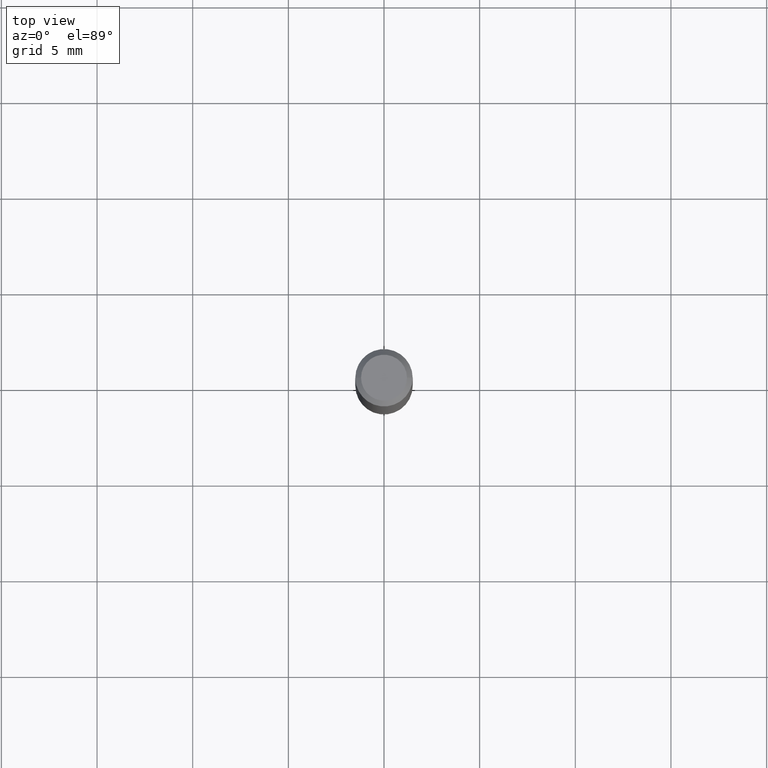
[diagram: clean part render]
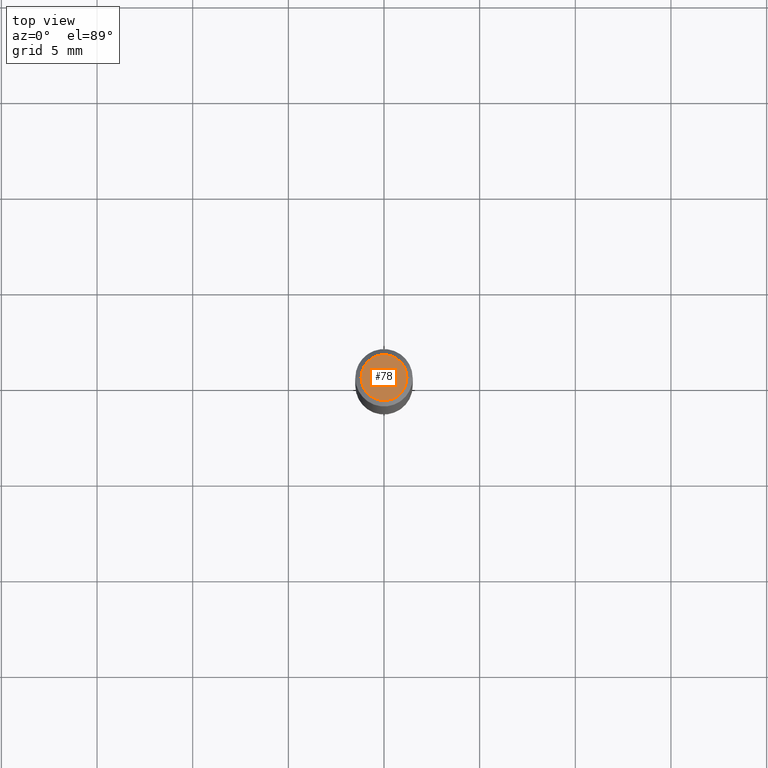
[diagram: same view with one face highlighted and labeled with its STEP entity id]
A machine part, top view. The second image highlights one B-rep face of the part: STEP entity #78.
In plain terms, the highlighted planar face has unit normal (0, -0, -1).
Its self-contained STEP definition (entity closure, byte-faithful):
#15 = DIRECTION ( 'NONE',  ( 1.000000000000000000, -6.982962677686266711E-15, 4.876185090822587894E-29 ) ) ;
#25 = FACE_OUTER_BOUND ( 'NONE', #129, .T. ) ;
#49 = VERTEX_POINT ( 'NONE', #253 ) ;
#66 = CIRCLE ( 'NONE', #91, 0.04724000000000000421 ) ;
#78 = ADVANCED_FACE ( 'NONE', ( #25 ), #185, .F. ) ;
#91 = AXIS2_PLACEMENT_3D ( 'NONE', #99, #105, #216 ) ;
#99 = CARTESIAN_POINT ( 'NONE',  ( 8.265746106709734507E-48, -1.180129479067563789E-33, -3.380025165646692144E-19 ) ) ;
#105 = DIRECTION ( 'NONE',  ( -2.445468806185136597E-29, 3.491481338843145583E-15, 1.000000000000000000 ) ) ;
#124 = EDGE_CURVE ( 'NONE', #379, #49, #66, .T. ) ;
#129 = EDGE_LOOP ( 'NONE', ( #149, #319 ) ) ;
#135 = DIRECTION ( 'NONE',  ( -1.000000000000000000, 6.982962677686265922E-15, -4.876176775795935793E-29 ) ) ;
#145 = DIRECTION ( 'NONE',  ( 2.438088387897960049E-29, -3.491481338843145188E-15, -1.000000000000000000 ) ) ;
#149 = ORIENTED_EDGE ( 'NONE', *, *, #393, .T. ) ;
#166 = DIRECTION ( 'NONE',  ( -2.445468806185136597E-29, 3.491481338843145583E-15, 1.000000000000000000 ) ) ;
#185 = PLANE ( 'NONE',  #220 ) ;
#205 = AXIS2_PLACEMENT_3D ( 'NONE', #388, #166, #15 ) ;
#216 = DIRECTION ( 'NONE',  ( 1.000000000000000000, -6.982962677686266711E-15, 4.876185090822587894E-29 ) ) ;
#220 = AXIS2_PLACEMENT_3D ( 'NONE', #441, #145, #135 ) ;
#253 = CARTESIAN_POINT ( 'NONE',  ( -0.04724000000000000421, 3.504923541997677355E-16, -3.380025165670481712E-19 ) ) ;
#319 = ORIENTED_EDGE ( 'NONE', *, *, #124, .T. ) ;
#375 = CIRCLE ( 'NONE', #205, 0.04724000000000000421 ) ;
#379 = VERTEX_POINT ( 'NONE', #452 ) ;
#388 = CARTESIAN_POINT ( 'NONE',  ( 8.265746106709734507E-48, -1.180129479067563789E-33, -3.380025165646692144E-19 ) ) ;
#393 = EDGE_CURVE ( 'NONE', #49, #379, #375, .T. ) ;
#441 = CARTESIAN_POINT ( 'NONE',  ( 4.132873053354867254E-48, -5.900647395337818946E-34, -1.690012582823346072E-19 ) ) ;
#452 = CARTESIAN_POINT ( 'NONE',  ( 0.04724000000000000421, -3.852183633974369838E-16, -3.380025165621689721E-19 ) ) ;